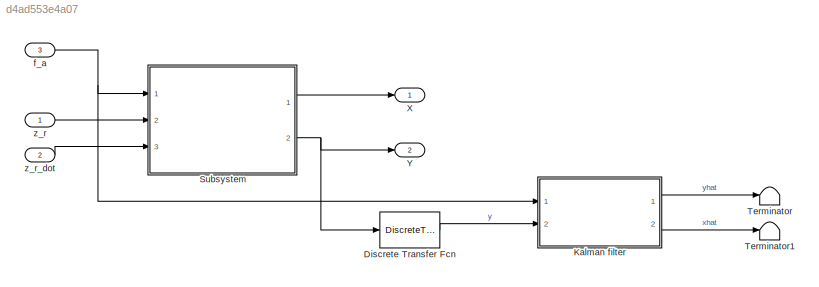
MODEL slx_d4ad553e4a07
KIND model
CONFIG AbsTol = auto
CONFIG EnableMultiTasking = off
CONFIG FixedStep = STEP_SIZE
CONFIG MaxStep = auto
CONFIG MinStep = auto
CONFIG RelTol = 1e-3
CONFIG SampleTimeConstraint = Unconstrained
CONFIG Solver = ode4
CONFIG SolverName = ode4
CONFIG StartTime = 0.0
CONFIG StopTime = SIM_TIME
BLOCK [DiscreteTransferFcn] Discrete Transfer Fcn
  Denominator = [1]
  InputPortMap = u0
  Ports = [1, 1]
  SampleTime = Ts
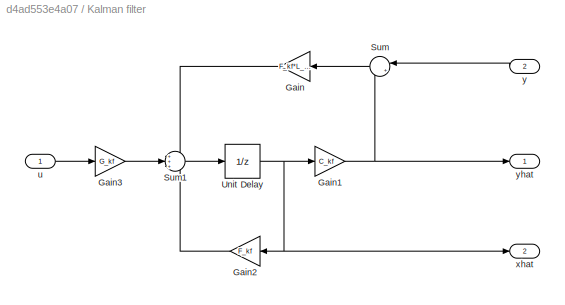
BLOCK [SubSystem] Kalman filter
  Ports = [2, 2]
  RequestExecContextInheritance = off
BLOCK [Gain] Kalman filter/Gain
  Gain = F_kf*L_kf
  Multiplication = Matrix(K*u) (u vector)
  OutDataTypeStr = Inherit: Inherit via internal rule
  ParamDataTypeStr = Inherit: Inherit via internal rule
  SaturateOnIntegerOverflow = off
BLOCK [Gain] Kalman filter/Gain1
  Gain = C_kf
  Multiplication = Matrix(K*u) (u vector)
  OutDataTypeStr = Inherit: Inherit via internal rule
  ParamDataTypeStr = Inherit: Inherit via internal rule
  SaturateOnIntegerOverflow = off
BLOCK [Gain] Kalman filter/Gain2
  Gain = F_kf
  Multiplication = Matrix(K*u) (u vector)
  OutDataTypeStr = Inherit: Inherit via internal rule
  ParamDataTypeStr = Inherit: Inherit via internal rule
  SaturateOnIntegerOverflow = off
BLOCK [Gain] Kalman filter/Gain3
  Gain = G_kf
  Multiplication = Matrix(K*u) (u vector)
  OutDataTypeStr = Inherit: Inherit via internal rule
  ParamDataTypeStr = Inherit: Inherit via internal rule
  SaturateOnIntegerOverflow = off
BLOCK [Sum] Kalman filter/Sum
  IconShape = round
  InputSameDT = off
  Inputs = |+-
  OutDataTypeStr = Inherit: Inherit via internal rule
  Ports = [2, 1]
  SaturateOnIntegerOverflow = off
BLOCK [Sum] Kalman filter/Sum1
  IconShape = round
  InputSameDT = off
  Inputs = +++
  OutDataTypeStr = Inherit: Inherit via internal rule
  Ports = [3, 1]
  SaturateOnIntegerOverflow = off
BLOCK [UnitDelay] Kalman filter/Unit Delay
  InitialCondition = x0hat
  InputProcessing = Elements as channels (sample based)
  SampleTime = Ts
BLOCK [Inport] Kalman filter/u
  IconDisplay = Port number
BLOCK [Outport] Kalman filter/xhat
  IconDisplay = Port number
  Port = 2
BLOCK [Inport] Kalman filter/y
  IconDisplay = Port number
  Port = 2
BLOCK [Outport] Kalman filter/yhat
  IconDisplay = Port number
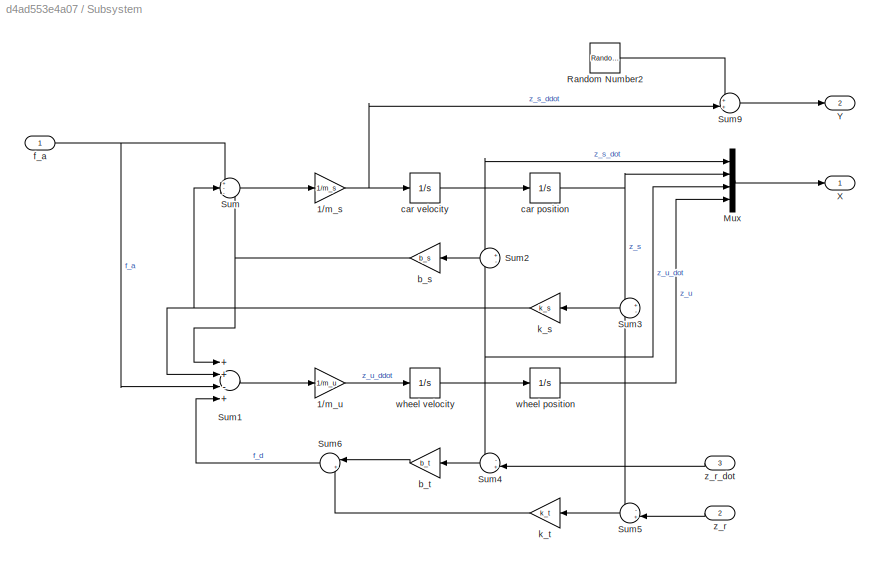
BLOCK [SubSystem] Subsystem
  Ports = [3, 2]
  RequestExecContextInheritance = off
BLOCK [Gain] Subsystem/1//m_s
  Gain = 1/m_s
  OutDataTypeStr = Inherit: Inherit via internal rule
  ParamDataTypeStr = Inherit: Inherit via internal rule
  SaturateOnIntegerOverflow = off
BLOCK [Gain] Subsystem/1//m_u
  Gain = 1/m_u
  OutDataTypeStr = Inherit: Inherit via internal rule
  ParamDataTypeStr = Inherit: Inherit via internal rule
  SaturateOnIntegerOverflow = off
BLOCK [Mux] Subsystem/Mux
  DisplayOption = bar
  Ports = [4, 1]
BLOCK [RandomNumber] Subsystem/Random Number2
  SampleTime = Ts
  Seed = [5821490]
  Variance = V2d
BLOCK [Sum] Subsystem/Sum
  IconShape = round
  InputSameDT = off
  Inputs = +--
  OutDataTypeStr = Inherit: Inherit via internal rule
  Ports = [3, 1]
  SaturateOnIntegerOverflow = off
BLOCK [Sum] Subsystem/Sum1
  InputSameDT = off
  Inputs = ++-+
  OutDataTypeStr = Inherit: Inherit via internal rule
  Ports = [4, 1]
  SaturateOnIntegerOverflow = off
BLOCK [Sum] Subsystem/Sum2
  IconShape = round
  InputSameDT = off
  Inputs = +-
  OutDataTypeStr = Inherit: Inherit via internal rule
  Ports = [2, 1]
  SaturateOnIntegerOverflow = off
BLOCK [Sum] Subsystem/Sum3
  IconShape = round
  InputSameDT = off
  Inputs = +-
  OutDataTypeStr = Inherit: Inherit via internal rule
  Ports = [2, 1]
  SaturateOnIntegerOverflow = off
BLOCK [Sum] Subsystem/Sum4
  IconShape = round
  InputSameDT = off
  Inputs = -+|
  OutDataTypeStr = Inherit: Inherit via internal rule
  Ports = [2, 1]
  SaturateOnIntegerOverflow = off
BLOCK [Sum] Subsystem/Sum5
  IconShape = round
  InputSameDT = off
  Inputs = -+|
  OutDataTypeStr = Inherit: Inherit via internal rule
  Ports = [2, 1]
  SaturateOnIntegerOverflow = off
BLOCK [Sum] Subsystem/Sum6
  IconShape = round
  InputSameDT = off
  Inputs = |++
  OutDataTypeStr = Inherit: Inherit via internal rule
  Ports = [2, 1]
  SaturateOnIntegerOverflow = off
BLOCK [Sum] Subsystem/Sum9
  IconShape = round
  InputSameDT = off
  Inputs = ++|
  OutDataTypeStr = Inherit: Inherit via internal rule
  Ports = [2, 1]
  SaturateOnIntegerOverflow = off
BLOCK [Outport] Subsystem/X
  IconDisplay = Port number
BLOCK [Outport] Subsystem/Y
  IconDisplay = Port number
  Port = 2
BLOCK [Gain] Subsystem/b_s
  Gain = b_s
  OutDataTypeStr = Inherit: Inherit via internal rule
  ParamDataTypeStr = Inherit: Inherit via internal rule
  SaturateOnIntegerOverflow = off
BLOCK [Gain] Subsystem/b_t
  Gain = b_t
  OutDataTypeStr = Inherit: Inherit via internal rule
  ParamDataTypeStr = Inherit: Inherit via internal rule
  SaturateOnIntegerOverflow = off
BLOCK [Integrator] Subsystem/car position
  Ports = [1, 1]
BLOCK [Integrator] Subsystem/car velocity
  Ports = [1, 1]
BLOCK [Inport] Subsystem/f_a
  IconDisplay = Port number
BLOCK [Gain] Subsystem/k_s
  Gain = k_s
  OutDataTypeStr = Inherit: Inherit via internal rule
  ParamDataTypeStr = Inherit: Inherit via internal rule
  SaturateOnIntegerOverflow = off
BLOCK [Gain] Subsystem/k_t
  Gain = k_t
  OutDataTypeStr = Inherit: Inherit via internal rule
  ParamDataTypeStr = Inherit: Inherit via internal rule
  SaturateOnIntegerOverflow = off
BLOCK [Integrator] Subsystem/wheel position
  Ports = [1, 1]
BLOCK [Integrator] Subsystem/wheel velocity
  Ports = [1, 1]
BLOCK [Inport] Subsystem/z_r
  IconDisplay = Port number
  Port = 2
BLOCK [Inport] Subsystem/z_r_dot
  IconDisplay = Port number
  Port = 3
BLOCK [Terminator] Terminator
BLOCK [Terminator] Terminator1
BLOCK [Outport] X
  IconDisplay = Port number
BLOCK [Outport] Y
  IconDisplay = Port number
  Port = 2
BLOCK [Inport] f_a
  IconDisplay = Port number
  Port = 3
BLOCK [Inport] z_r
  IconDisplay = Port number
BLOCK [Inport] z_r_dot
  IconDisplay = Port number
  Port = 2
LINE Discrete Transfer Fcn:1 -> Kalman filter:2
NET Kalman filter/Gain1:1 -> Kalman filter/Sum:2, Kalman filter/yhat:1
LINE Kalman filter/Gain2:1 -> Kalman filter/Sum1:3
LINE Kalman filter/Gain3:1 -> Kalman filter/Sum1:2
LINE Kalman filter/Gain:1 -> Kalman filter/Sum1:1
LINE Kalman filter/Sum1:1 -> Kalman filter/Unit Delay:1
LINE Kalman filter/Sum:1 -> Kalman filter/Gain:1
NET Kalman filter/Unit Delay:1 -> Kalman filter/Gain1:1, Kalman filter/Gain2:1, Kalman filter/xhat:1
LINE Kalman filter/u:1 -> Kalman filter/Gain3:1
LINE Kalman filter/y:1 -> Kalman filter/Sum:1
LINE Kalman filter:1 -> Terminator:1
LINE Kalman filter:2 -> Terminator1:1
NET Subsystem/1//m_s:1 -> Subsystem/Sum9:2, Subsystem/car velocity:1
LINE Subsystem/1//m_u:1 -> Subsystem/wheel velocity:1
LINE Subsystem/Mux:1 -> Subsystem/X:1
LINE Subsystem/Random Number2:1 -> Subsystem/Sum9:1
LINE Subsystem/Sum1:1 -> Subsystem/1//m_u:1
LINE Subsystem/Sum2:1 -> Subsystem/b_s:1
LINE Subsystem/Sum3:1 -> Subsystem/k_s:1
LINE Subsystem/Sum4:1 -> Subsystem/b_t:1
LINE Subsystem/Sum5:1 -> Subsystem/k_t:1
LINE Subsystem/Sum6:1 -> Subsystem/Sum1:4
LINE Subsystem/Sum9:1 -> Subsystem/Y:1
LINE Subsystem/Sum:1 -> Subsystem/1//m_s:1
NET Subsystem/b_s:1 -> Subsystem/Sum1:1, Subsystem/Sum:3
LINE Subsystem/b_t:1 -> Subsystem/Sum6:1
NET Subsystem/car position:1 -> Subsystem/Mux:2, Subsystem/Sum3:1
NET Subsystem/car velocity:1 -> Subsystem/Mux:1, Subsystem/Sum2:1, Subsystem/car position:1
NET Subsystem/f_a:1 -> Subsystem/Sum1:3, Subsystem/Sum:1
NET Subsystem/k_s:1 -> Subsystem/Sum1:2, Subsystem/Sum:2
LINE Subsystem/k_t:1 -> Subsystem/Sum6:2
NET Subsystem/wheel position:1 -> Subsystem/Mux:4, Subsystem/Sum3:2, Subsystem/Sum5:1
NET Subsystem/wheel velocity:1 -> Subsystem/Mux:3, Subsystem/Sum2:2, Subsystem/Sum4:1, Subsystem/wheel position:1
LINE Subsystem/z_r:1 -> Subsystem/Sum5:2
LINE Subsystem/z_r_dot:1 -> Subsystem/Sum4:2
LINE Subsystem:1 -> X:1
NET Subsystem:2 -> Discrete Transfer Fcn:1, Y:1
NET f_a:1 -> Kalman filter:1, Subsystem:1
LINE z_r:1 -> Subsystem:2
LINE z_r_dot:1 -> Subsystem:3
note: NET lines group one-source signal fan-out (src -> all destinations, sorted); 1:1 wires keep LINE
